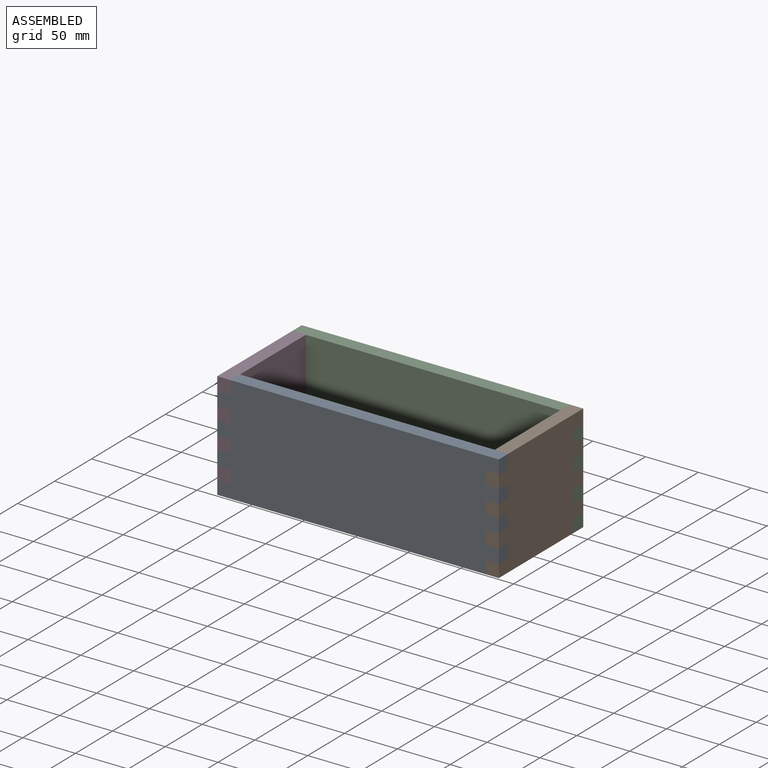
[diagram: assembled view]
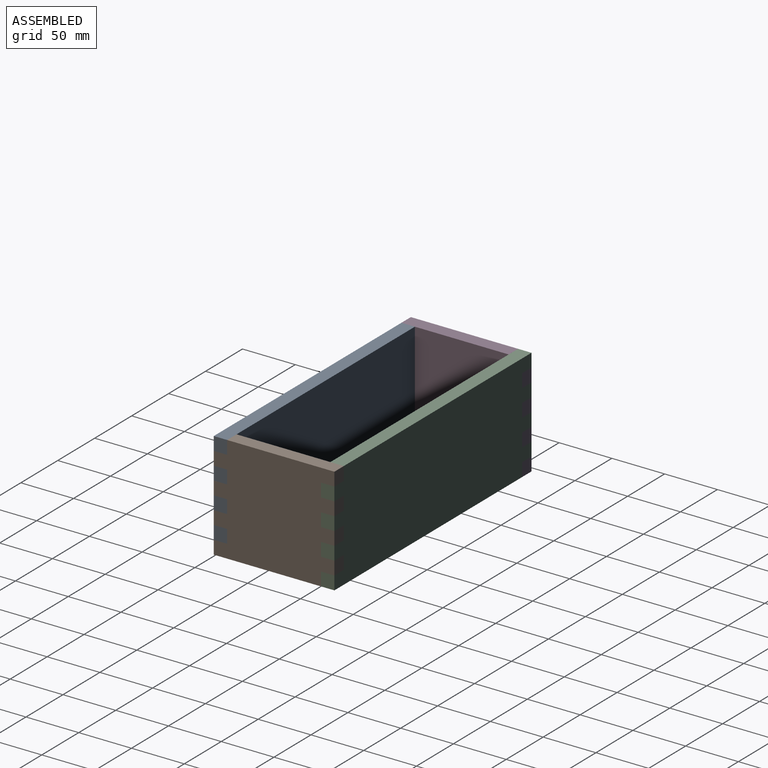
[diagram: assembled view, second angle]
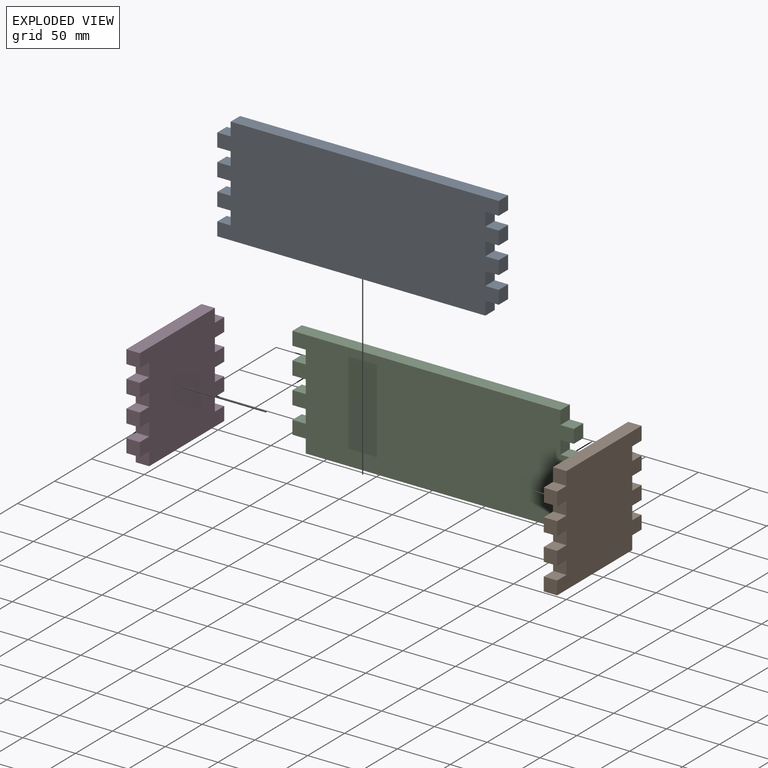
[diagram: exploded view]
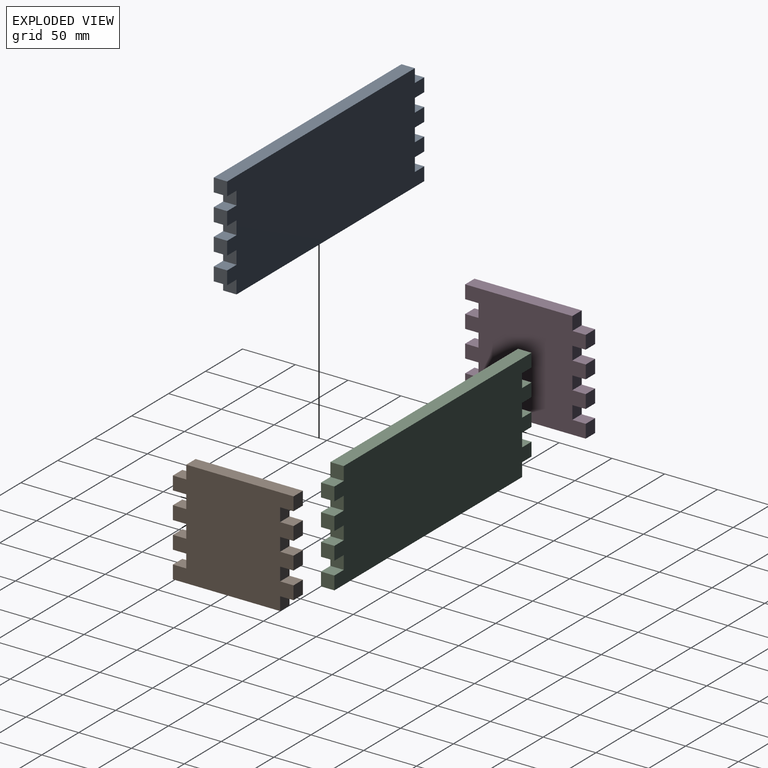
[diagram: exploded view, second angle]
ASSEMBLY  parts=4 mates=3
PART A: 34 faces, bbox 266.7x12.7x101.6 mm
  f0: plane 254x12.7mm, normal (0,0,-1), area 3225.8mm2, adj f1,f31,f32,f33
  f1: plane 12.7x12.7mm, normal (1,0,0), area 161.3mm2, adj f0,f2,f32,f33
  f2: plane 12.7x12.7mm, normal (0,0,-1), area 161.3mm2, adj f1,f3,f32,f33
  f3: plane 12.7x12.7mm, normal (1,0,0), area 161.3mm2, adj f2,f4,f32,f33
  f4: plane 12.7x12.7mm, normal (0,0,1), area 161.3mm2, adj f3,f5,f32,f33
  f5: plane 12.7x12.7mm, normal (1,0,0), area 161.3mm2, adj f4,f6,f32,f33
  f6: plane 12.7x12.7mm, normal (0,0,-1), area 161.3mm2, adj f5,f7,f32,f33
  f7: plane 12.7x12.7mm, normal (1,0,0), area 161.3mm2, adj f6,f8,f32,f33
  f8: plane 12.7x12.7mm, normal (0,0,1), area 161.3mm2, adj f7,f9,f32,f33
  f9: plane 12.7x12.7mm, normal (1,0,0), area 161.3mm2, adj f8,f10,f32,f33
  f10: plane 12.7x12.7mm, normal (0,0,-1), area 161.3mm2, adj f9,f11,f32,f33
  f11: plane 12.7x12.7mm, normal (1,0,0), area 161.3mm2, adj f10,f12,f32,f33
  f12: plane 12.7x12.7mm, normal (0,0,1), area 161.3mm2, adj f11,f13,f32,f33
  f13: plane 12.7x12.7mm, normal (1,0,0), area 161.3mm2, adj f12,f14,f32,f33
  f14: plane 12.7x12.7mm, normal (0,0,-1), area 161.3mm2, adj f13,f15,f32,f33
  f15: plane 12.7x12.7mm, normal (1,0,0), area 161.3mm2, adj f14,f16,f32,f33
  f16: plane 254x12.7mm, normal (0,0,1), area 3225.8mm2, adj f15,f17,f32,f33
  f17: plane 12.7x12.7mm, normal (-1,0,0), area 161.3mm2, adj f16,f18,f32,f33
  f18: plane 12.7x12.7mm, normal (0,0,1), area 161.3mm2, adj f17,f19,f32,f33
  f19: plane 12.7x12.7mm, normal (-1,0,0), area 161.3mm2, adj f18,f20,f32,f33
  f20: plane 12.7x12.7mm, normal (0,0,-1), area 161.3mm2, adj f19,f21,f32,f33
  f21: plane 12.7x12.7mm, normal (-1,0,0), area 161.3mm2, adj f20,f22,f32,f33
  f22: plane 12.7x12.7mm, normal (0,0,1), area 161.3mm2, adj f21,f23,f32,f33
  f23: plane 12.7x12.7mm, normal (-1,0,0), area 161.3mm2, adj f22,f24,f32,f33
  f24: plane 12.7x12.7mm, normal (0,0,-1), area 161.3mm2, adj f23,f25,f32,f33
  f25: plane 12.7x12.7mm, normal (-1,0,0), area 161.3mm2, adj f24,f26,f32,f33
  f26: plane 12.7x12.7mm, normal (0,0,1), area 161.3mm2, adj f25,f27,f32,f33
  f27: plane 12.7x12.7mm, normal (-1,0,0), area 161.3mm2, adj f26,f28,f32,f33
  f28: plane 12.7x12.7mm, normal (0,0,-1), area 161.3mm2, adj f27,f29,f32,f33
  f29: plane 12.7x12.7mm, normal (-1,0,0), area 161.3mm2, adj f28,f30,f32,f33
  f30: plane 12.7x12.7mm, normal (0,0,1), area 161.3mm2, adj f29,f31,f32,f33
  f31: plane 12.7x12.7mm, normal (-1,0,0), area 161.3mm2, adj f0,f30,f32,f33
  f32: plane 266.7x101.6mm, normal (0,-1,0), area 25806.4mm2, adj f0,f1,f2,f3,f4,f5,f6,f7
  f33: plane 266.7x101.6mm, normal (0,1,0), area 25806.4mm2, adj f0,f1,f2,f3,f4,f5,f6,f7
PART B: 34 faces, bbox 12.7x114.3x101.6 mm
  f0: plane 12.7x12.7mm, normal (0,-1,0), area 161.3mm2, adj f1,f31,f32,f33
  f1: plane 101.6x12.7mm, normal (0,0,-1), area 1290.3mm2, adj f0,f2,f32,f33
  f2: plane 12.7x12.7mm, normal (0,1,0), area 161.3mm2, adj f1,f3,f32,f33
  f3: plane 12.7x12.7mm, normal (0,0,1), area 161.3mm2, adj f2,f4,f32,f33
  f4: plane 12.7x12.7mm, normal (0,1,0), area 161.3mm2, adj f3,f5,f32,f33
  f5: plane 12.7x12.7mm, normal (0,0,-1), area 161.3mm2, adj f4,f6,f32,f33
  f6: plane 12.7x12.7mm, normal (0,1,0), area 161.3mm2, adj f5,f7,f32,f33
  f7: plane 12.7x12.7mm, normal (0,0,1), area 161.3mm2, adj f6,f8,f32,f33
  f8: plane 12.7x12.7mm, normal (0,1,0), area 161.3mm2, adj f7,f9,f32,f33
  f9: plane 12.7x12.7mm, normal (0,0,-1), area 161.3mm2, adj f8,f10,f32,f33
  f10: plane 12.7x12.7mm, normal (0,1,0), area 161.3mm2, adj f9,f11,f32,f33
  f11: plane 12.7x12.7mm, normal (0,0,1), area 161.3mm2, adj f10,f12,f32,f33
  f12: plane 12.7x12.7mm, normal (0,1,0), area 161.3mm2, adj f11,f13,f32,f33
  f13: plane 12.7x12.7mm, normal (0,0,-1), area 161.3mm2, adj f12,f14,f32,f33
  f14: plane 12.7x12.7mm, normal (0,1,0), area 161.3mm2, adj f13,f15,f32,f33
  f15: plane 12.7x12.7mm, normal (0,0,1), area 161.3mm2, adj f14,f16,f32,f33
  f16: plane 12.7x12.7mm, normal (0,1,0), area 161.3mm2, adj f15,f17,f32,f33
  f17: plane 101.6x12.7mm, normal (0,0,1), area 1290.3mm2, adj f16,f18,f32,f33
  f18: plane 12.7x12.7mm, normal (0,-1,0), area 161.3mm2, adj f17,f19,f32,f33
  f19: plane 12.7x12.7mm, normal (0,0,-1), area 161.3mm2, adj f18,f20,f32,f33
  f20: plane 12.7x12.7mm, normal (0,-1,0), area 161.3mm2, adj f19,f21,f32,f33
  f21: plane 12.7x12.7mm, normal (0,0,1), area 161.3mm2, adj f20,f22,f32,f33
  f22: plane 12.7x12.7mm, normal (0,-1,0), area 161.3mm2, adj f21,f23,f32,f33
  f23: plane 12.7x12.7mm, normal (0,0,-1), area 161.3mm2, adj f22,f24,f32,f33
  f24: plane 12.7x12.7mm, normal (0,-1,0), area 161.3mm2, adj f23,f25,f32,f33
  f25: plane 12.7x12.7mm, normal (0,0,1), area 161.3mm2, adj f24,f26,f32,f33
  f26: plane 12.7x12.7mm, normal (0,-1,0), area 161.3mm2, adj f25,f27,f32,f33
  f27: plane 12.7x12.7mm, normal (0,0,-1), area 161.3mm2, adj f26,f28,f32,f33
  f28: plane 12.7x12.7mm, normal (0,-1,0), area 161.3mm2, adj f27,f29,f32,f33
  f29: plane 12.7x12.7mm, normal (0,0,1), area 161.3mm2, adj f28,f30,f32,f33
  f30: plane 12.7x12.7mm, normal (0,-1,0), area 161.3mm2, adj f29,f31,f32,f33
  f31: plane 12.7x12.7mm, normal (0,0,-1), area 161.3mm2, adj f0,f30,f32,f33
  f32: plane 114.3x101.6mm, normal (1,0,0), area 10322.6mm2, adj f0,f1,f2,f3,f4,f5,f6,f7
  f33: plane 114.3x101.6mm, normal (-1,0,0), area 10322.6mm2, adj f0,f1,f2,f3,f4,f5,f6,f7
PART C: same geometry as A
PART D: same geometry as B
PLACE A t=(-59.53,56.76,-0.13)mm
PLACE B rot(axis=(0,1,0),180deg) t=(80.17,107.56,101.47)mm
PLACE C rot(axis=(0,0,1),180deg) t=(-46.83,145.66,-0.13)mm
PLACE D t=(-186.53,107.56,-0.13)mm
MATE planar C.f2 <-> D.f3  axis (0,0,-1) through (-180.18,152.01,12.57)mm
MATE planar A.f30 <-> D.f31  axis (0,0,1) through (-180.18,50.41,12.57)mm
MATE planar B.f15 <-> C.f30  axis (0,0,-1) through (73.82,152.01,12.57)mm
